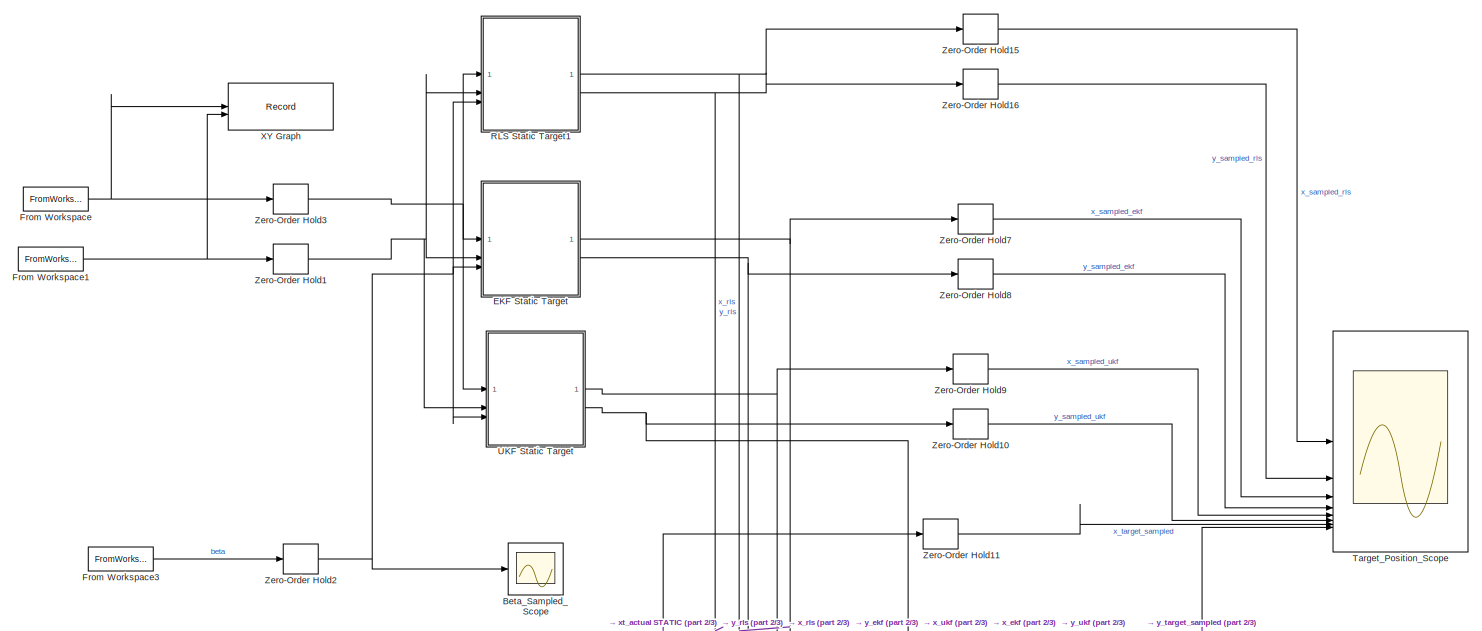
[diagram: root canvas - part 1/3, full width, top band]
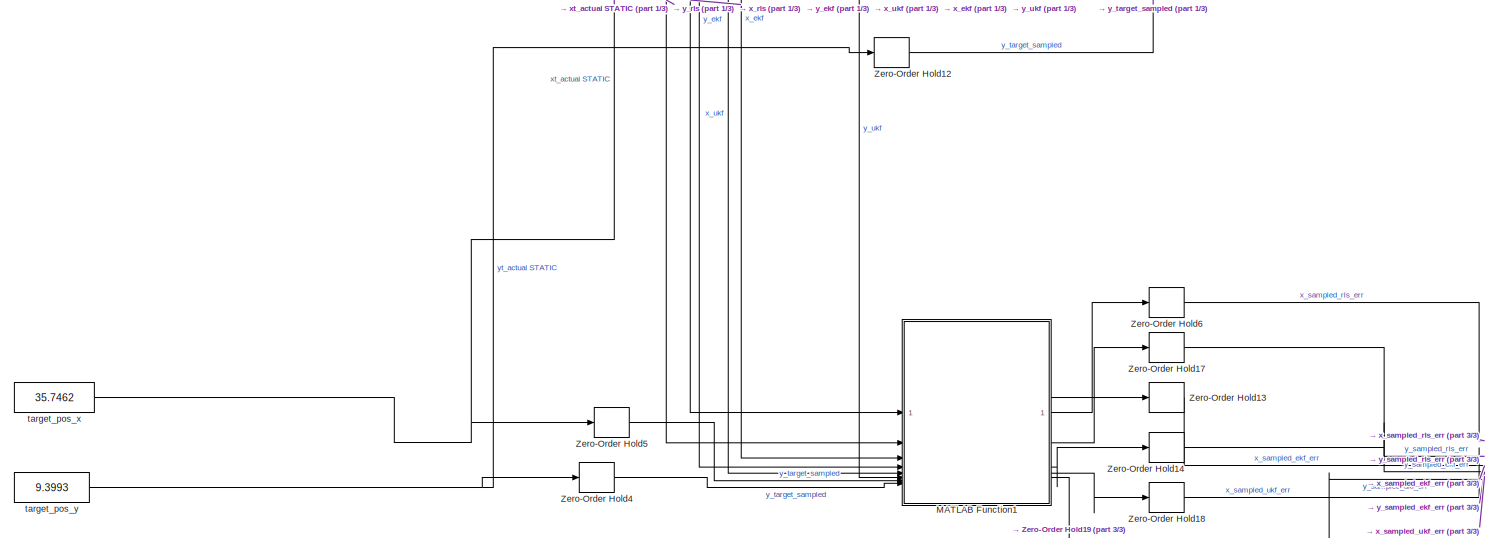
[diagram: root canvas - part 2/3, full width, bottom band]
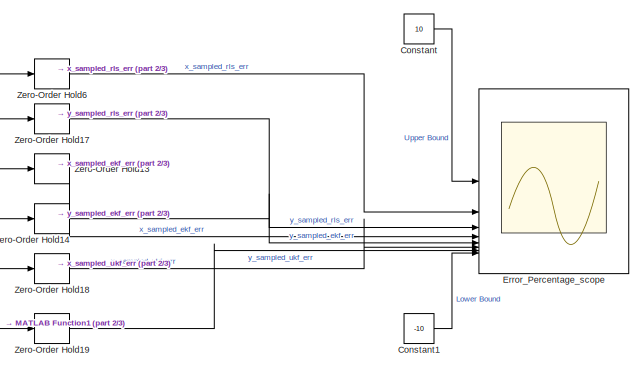
[diagram: root canvas - part 3/3, bottom right region]
MODEL slx_868434b02c09
KIND model
CONFIG AbsTol = auto
CONFIG EnableMultiTasking = off
CONFIG FixedStep = auto
CONFIG MaxStep = auto
CONFIG MinStep = auto
CONFIG RelTol = 1e-3
CONFIG SampleTimeConstraint = Unconstrained
CONFIG SolverName = VariableStepAuto
CONFIG StartTime = 0.0
CONFIG StopTime = 50.0
BLOCK [Scope] Beta_Sampled_Scope
  Floating = off
  NumInputPorts = 1
  ScopeSpecificationString = Simulink.scopes.TimeScopeBlockCfg('CurrentConfiguration', extmgr.ConfigurationSet(extmgr.Configuration('Core','General UI',true),extmgr.Configuration('Core','Source UI',true),extmgr.Configuration('Sources','WiredSimulink',true),extmgr.Configuration('Visuals','Time Domain',true,'SerializedDisplays',{struct('MinYLimReal','-1.04975','MaxYLimReal','-0.06586','YLabelReal','','MinYLimMag','0.00000','Max...<+1561ch>
BLOCK [Constant] Constant
  Value = 10
BLOCK [Constant] Constant1
  Value = -10
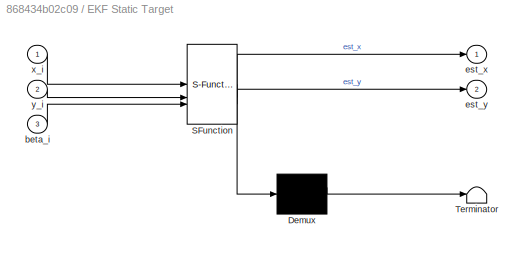
BLOCK [SubSystem] EKF Static Target
  ErrorFcn = Stateflow.Translate.translate
  PermitHierarchicalResolution = ExplicitOnly
  SFBlockType = MATLAB Function
  TreatAsAtomicUnit = on
BLOCK [Demux] EKF Static Target/ Demux 
  Outputs = 1
BLOCK [S-Function] EKF Static Target/ SFunction 
  EnableBusSupport = on
  FunctionName = sf_sfun
  PortCounts = [3 3]
  SFcnIsStateOwnerBlock = off
  SFunctionDeploymentMode = off
  Tag = Stateflow S-Function 9
BLOCK [Terminator] EKF Static Target/ Terminator 
BLOCK [Inport] EKF Static Target/beta_i
  Port = 3
BLOCK [Outport] EKF Static Target/est_x
BLOCK [Outport] EKF Static Target/est_y
  Port = 2
BLOCK [Inport] EKF Static Target/x_i
BLOCK [Inport] EKF Static Target/y_i
  Port = 2
BLOCK [Scope] Error_Percentage_scope
  Floating = off
  NumInputPorts = 8
  ScopeSpecificationString = Simulink.scopes.TimeScopeBlockCfg('CurrentConfiguration', extmgr.ConfigurationSet(extmgr.Configuration('Core','General UI',true,'FigureColor','[1 1 1]'),extmgr.Configuration('Core','Source UI',true),extmgr.Configuration('Sources','WiredSimulink',true,'DataLoggingVariableName','ScopeData2'),extmgr.Configuration('Visuals','Time Domain',true,'SerializedDisplays',{struct('MinYLimReal','-272.33748','Ma...<+1841ch>
BLOCK [FromWorkspace] From Workspace
  VariableName = simulink_matrix_X
BLOCK [FromWorkspace] From Workspace1
  VariableName = simulink_matrix_Y
BLOCK [FromWorkspace] From Workspace3
  VariableName = simulink_matrix_Bearing
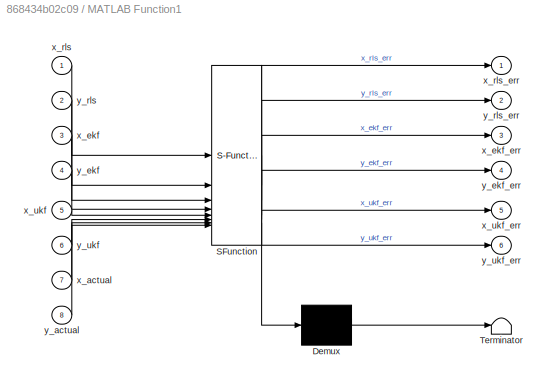
BLOCK [SubSystem] MATLAB Function1
  ErrorFcn = Stateflow.Translate.translate
  PermitHierarchicalResolution = ExplicitOnly
  SFBlockType = MATLAB Function
  TreatAsAtomicUnit = on
BLOCK [Demux] MATLAB Function1/ Demux 
  Outputs = 1
BLOCK [S-Function] MATLAB Function1/ SFunction 
  EnableBusSupport = on
  FunctionName = sf_sfun
  PortCounts = [8 7]
  SFcnIsStateOwnerBlock = off
  SFunctionDeploymentMode = off
  Tag = Stateflow S-Function 4
BLOCK [Terminator] MATLAB Function1/ Terminator 
BLOCK [Inport] MATLAB Function1/x_actual
  Port = 7
BLOCK [Inport] MATLAB Function1/x_ekf
  Port = 3
BLOCK [Outport] MATLAB Function1/x_ekf_err
  Port = 3
BLOCK [Inport] MATLAB Function1/x_rls
BLOCK [Outport] MATLAB Function1/x_rls_err
BLOCK [Inport] MATLAB Function1/x_ukf
  Port = 5
BLOCK [Outport] MATLAB Function1/x_ukf_err
  Port = 5
BLOCK [Inport] MATLAB Function1/y_actual
  Port = 8
BLOCK [Inport] MATLAB Function1/y_ekf
  Port = 4
BLOCK [Outport] MATLAB Function1/y_ekf_err
  Port = 4
BLOCK [Inport] MATLAB Function1/y_rls
  Port = 2
BLOCK [Outport] MATLAB Function1/y_rls_err
  Port = 2
BLOCK [Inport] MATLAB Function1/y_ukf
  Port = 6
BLOCK [Outport] MATLAB Function1/y_ukf_err
  Port = 6
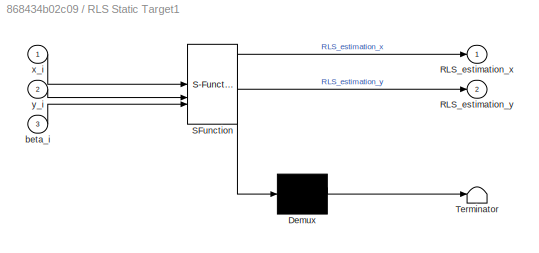
BLOCK [SubSystem] RLS Static Target1
  ErrorFcn = Stateflow.Translate.translate
  PermitHierarchicalResolution = ExplicitOnly
  SFBlockType = MATLAB Function
  TreatAsAtomicUnit = on
BLOCK [Demux] RLS Static Target1/ Demux 
  Outputs = 1
BLOCK [S-Function] RLS Static Target1/ SFunction 
  EnableBusSupport = on
  FunctionName = sf_sfun
  PortCounts = [3 3]
  SFcnIsStateOwnerBlock = off
  SFunctionDeploymentMode = off
  Tag = Stateflow S-Function 1
BLOCK [Terminator] RLS Static Target1/ Terminator 
BLOCK [Outport] RLS Static Target1/RLS_estimation_x
BLOCK [Outport] RLS Static Target1/RLS_estimation_y
  Port = 2
BLOCK [Inport] RLS Static Target1/beta_i
  Port = 3
BLOCK [Inport] RLS Static Target1/x_i
BLOCK [Inport] RLS Static Target1/y_i
  Port = 2
BLOCK [Scope] Target_Position_Scope
  Floating = off
  NumInputPorts = 8
  ScopeSpecificationString = Simulink.scopes.TimeScopeBlockCfg('CurrentConfiguration', extmgr.ConfigurationSet(extmgr.Configuration('Core','General UI',true,'FigureColor','[1 1 1]'),extmgr.Configuration('Core','Source UI',true),extmgr.Configuration('Sources','WiredSimulink',true,'DataLoggingVariableName','ScopeData1'),extmgr.Configuration('Visuals','Time Domain',true,'SerializedDisplays',{struct('MinYLimReal','-60.64935','Max...<+1732ch>
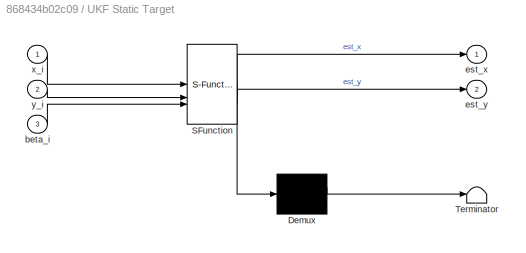
BLOCK [SubSystem] UKF Static Target
  ErrorFcn = Stateflow.Translate.translate
  PermitHierarchicalResolution = ExplicitOnly
  SFBlockType = MATLAB Function
  TreatAsAtomicUnit = on
BLOCK [Demux] UKF Static Target/ Demux 
  Outputs = 1
BLOCK [S-Function] UKF Static Target/ SFunction 
  EnableBusSupport = on
  FunctionName = sf_sfun
  PortCounts = [3 3]
  SFcnIsStateOwnerBlock = off
  SFunctionDeploymentMode = off
  Tag = Stateflow S-Function 5
BLOCK [Terminator] UKF Static Target/ Terminator 
BLOCK [Inport] UKF Static Target/beta_i
  Port = 3
BLOCK [Outport] UKF Static Target/est_x
BLOCK [Outport] UKF Static Target/est_y
  Port = 2
BLOCK [Inport] UKF Static Target/x_i
BLOCK [Inport] UKF Static Target/y_i
  Port = 2
BLOCK [Record] XY Graph
  CompatibilityTag = XY
  FileSettingsInternal = {"entries":[{"content":{"excelSettings":{"content":{},"type":"Streamout.ExcelSettings"}},"type":"Streamout.FileSettingStorage","uuid":""}],"packageUris":["http:\/\/schema.mathworks.com\/mf0\/streamout_blocks\/R2020a"],"version":"1.0"}
  Layout = [1 1]
  SignalsInternal = {"entries":[{"content":{"signals":[{"content":{"blockPath":[],"dimensions":[1],"domain":"","lineColor":"#0072bd","lineWidth":2,"plots":[ 1 ],"port":1,"signalID":1,"signalName":"From\nWorkspace"},"type":"RecordBlkView.Signal","uuid":""},{"content":{"blockPath":[],"dimensions":[1],"domain":"","lineColor":"#d95319","lineWidth":2,"plots":[ 1 ],"port":2,"signalID":2,"signalName":"From\nWorkspace1"},"ty...<+183ch>
  VisualizationBindings = {"xyplotplugin":{"info":[{"series":[{"bindingParametersList":[{"parameter":"X-Axis","signalID":1,"signalName":"From\nWorkspace"},{"parameter":"Y-Axis","signalID":2,"signalName":"From\nWorkspace1"}],"seriesID":0}],"subplotID":1}]}}
BLOCK [ZeroOrderHold] Zero-Order Hold1
  SampleTime = 0.01
BLOCK [ZeroOrderHold] Zero-Order Hold10
  SampleTime = 0.01
BLOCK [ZeroOrderHold] Zero-Order Hold11
  SampleTime = 0.01
BLOCK [ZeroOrderHold] Zero-Order Hold12
  SampleTime = 0.01
BLOCK [ZeroOrderHold] Zero-Order Hold13
  SampleTime = 0.01
BLOCK [ZeroOrderHold] Zero-Order Hold14
  SampleTime = 0.01
BLOCK [ZeroOrderHold] Zero-Order Hold15
  SampleTime = 0.01
BLOCK [ZeroOrderHold] Zero-Order Hold16
  SampleTime = 0.01
BLOCK [ZeroOrderHold] Zero-Order Hold17
  SampleTime = 0.01
BLOCK [ZeroOrderHold] Zero-Order Hold18
  SampleTime = 0.01
BLOCK [ZeroOrderHold] Zero-Order Hold19
  SampleTime = 0.01
BLOCK [ZeroOrderHold] Zero-Order Hold2
  SampleTime = 0.01
BLOCK [ZeroOrderHold] Zero-Order Hold3
  SampleTime = 0.01
BLOCK [ZeroOrderHold] Zero-Order Hold4
  SampleTime = 0.01
BLOCK [ZeroOrderHold] Zero-Order Hold5
  SampleTime = 0.01
BLOCK [ZeroOrderHold] Zero-Order Hold6
  SampleTime = 0.01
BLOCK [ZeroOrderHold] Zero-Order Hold7
  SampleTime = 0.01
BLOCK [ZeroOrderHold] Zero-Order Hold8
  SampleTime = 0.01
BLOCK [ZeroOrderHold] Zero-Order Hold9
  SampleTime = 0.01
BLOCK [Constant] target_pos_x
  Value = 35.7462
BLOCK [Constant] target_pos_y
  Value = 9.3993
LINE Constant1:1 -> Error_Percentage_scope:8
LINE Constant:1 -> Error_Percentage_scope:1
NET EKF Static Target:1 -> MATLAB Function1:3, Zero-Order Hold7:1
NET EKF Static Target:2 -> MATLAB Function1:4, Zero-Order Hold8:1
NET From Workspace1:1 -> XY Graph:2, Zero-Order Hold1:1
LINE From Workspace3:1 -> Zero-Order Hold2:1
NET From Workspace:1 -> XY Graph:1, Zero-Order Hold3:1
LINE MATLAB Function1:1 -> Zero-Order Hold6:1
LINE MATLAB Function1:2 -> Zero-Order Hold17:1
LINE MATLAB Function1:3 -> Zero-Order Hold13:1
LINE MATLAB Function1:4 -> Zero-Order Hold14:1
LINE MATLAB Function1:5 -> Zero-Order Hold18:1
LINE MATLAB Function1:6 -> Zero-Order Hold19:1
NET RLS Static Target1:1 -> MATLAB Function1:1, Zero-Order Hold15:1
NET RLS Static Target1:2 -> MATLAB Function1:2, Zero-Order Hold16:1
NET UKF Static Target:1 -> MATLAB Function1:5, Zero-Order Hold9:1
NET UKF Static Target:2 -> MATLAB Function1:6, Zero-Order Hold10:1
LINE Zero-Order Hold10:1 -> Target_Position_Scope:6
LINE Zero-Order Hold11:1 -> Target_Position_Scope:7
LINE Zero-Order Hold12:1 -> Target_Position_Scope:8
LINE Zero-Order Hold13:1 -> Error_Percentage_scope:4
LINE Zero-Order Hold14:1 -> Error_Percentage_scope:5
LINE Zero-Order Hold15:1 -> Target_Position_Scope:1
LINE Zero-Order Hold16:1 -> Target_Position_Scope:2
LINE Zero-Order Hold17:1 -> Error_Percentage_scope:3
LINE Zero-Order Hold18:1 -> Error_Percentage_scope:6
LINE Zero-Order Hold19:1 -> Error_Percentage_scope:7
NET Zero-Order Hold1:1 -> EKF Static Target:2, RLS Static Target1:2, UKF Static Target:2
NET Zero-Order Hold2:1 -> Beta_Sampled_Scope:1, EKF Static Target:3, RLS Static Target1:3, UKF Static Target:3
NET Zero-Order Hold3:1 -> EKF Static Target:1, RLS Static Target1:1, UKF Static Target:1
LINE Zero-Order Hold4:1 -> MATLAB Function1:8
LINE Zero-Order Hold5:1 -> MATLAB Function1:7
LINE Zero-Order Hold6:1 -> Error_Percentage_scope:2
LINE Zero-Order Hold7:1 -> Target_Position_Scope:3
LINE Zero-Order Hold8:1 -> Target_Position_Scope:4
LINE Zero-Order Hold9:1 -> Target_Position_Scope:5
NET target_pos_x:1 -> Zero-Order Hold11:1, Zero-Order Hold5:1
NET target_pos_y:1 -> Zero-Order Hold12:1, Zero-Order Hold4:1
note: NET lines group one-source signal fan-out (src -> all destinations, sorted); 1:1 wires keep LINE
CHART RLS Static Target1 states=1 transitions=1
  STATE_LABEL 'eML_blk_kernel()'
  STATE_LABEL 'SCRIPT:\nfunction [RLS_estimation_x, RLS_estimation_y] = fcn(x_i, y_i, beta_i)\n% fcn - Recursive Least Squares estimator for 2D static target\n\n    % Persistent variables\n    persistent covarience_matrix state_estimate\n\n    % RLS parameter\n    lambda = 1;\n\n    % Initialization \n    if isempty(covarience_matrix)\n        covarience_matrix = eye(2);  % Initial covariance matrix\n    end\n\n    if isempty(...<+1059ch>'
CHART MATLAB Function1 states=1 transitions=1
  STATE_LABEL 'eML_blk_kernel()'
  STATE_LABEL 'SCRIPT:\nfunction [x_rls_err,y_rls_err,x_ekf_err,y_ekf_err,x_ukf_err,y_ukf_err]= fcn(x_rls,y_rls,x_ekf,y_ekf,x_ukf,y_ukf,x_actual,y_actual)\n\nx_rls_err = ((x_rls - x_actual)/x_actual)*100;\ny_rls_err = ((y_rls - y_actual)/y_actual)*100;\n\nx_ekf_err = ((x_ekf - x_actual)/x_actual)*100;\ny_ekf_err = ((y_ekf - y_actual)/y_actual)*100;\n\nx_ukf_err = ((x_ukf - x_actual)/x_actual)*100;\ny_ukf_err = ((y_ukf - y...<+23ch>'
CHART UKF Static Target states=1 transitions=1
  STATE_LABEL 'eML_blk_kernel()'
  STATE_LABEL 'SCRIPT:\nfunction [est_x, est_y] = ukf_fcn(x_i, y_i, beta_i)\n\npersistent X_i P Q R lambda alpha beta nx\n\n\nif isempty(P)\n    nx = 6;\n    P = 1000* eye(nx);\n    Q = 0.001 * diag([0.01, 0.01, 1, 0.01, 1, 0.01]);\n    R = diag([1, 1, 100]);\n    \n    alpha = 1e-3;\n    beta = 2;\n    lambda = alpha^2 * (nx + 1) - nx;\nend\n\nif isempty(X_i)\n    X_i = zeros(nx, 1);\nend\n\ndt = 0.01;\n\nWm = [lambda / (nx + lambda)...<+1944ch>'
CHART EKF Static Target states=1 transitions=1
  STATE_LABEL 'eML_blk_kernel()'
  STATE_LABEL 'SCRIPT:\nfunction [est_x, est_y] = ekf_fcn(x_i, y_i, beta_i)\n\npersistent X_i P Q R\n\nif isempty(P)\n    P = 1000*eye(6);\n    Q = 0.01*diag([0.001, 0.001, 0.1, 0.001, 0.1, 0.001]);\n    R = diag([1, 1, 200]);\nend\n\nif isempty(X_i)\n    X_i = zeros(6, 1);\nend\n\ndt = 0.01;\n\nF = [1 0 0 0 0 0 ;\n     0 1 0 0 0 0 ; \n     0 0 1 dt 0 0; \n     0 0 0 1 0 0 ; \n     0 0 0 0 1 dt; \n     0 0 0 0 0 1];\n\nH = [0 0 1 0 0 0...<+336ch>'
CHART  states=0 transitions=0
CHART  states=0 transitions=0
CHART  states=0 transitions=0
CHART  states=0 transitions=0
